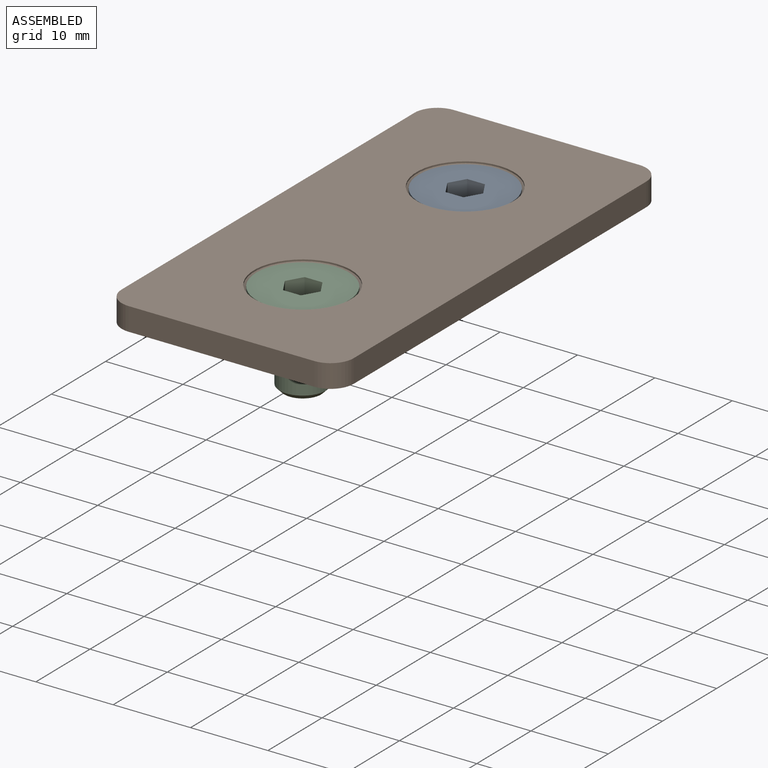
[diagram: assembled view]
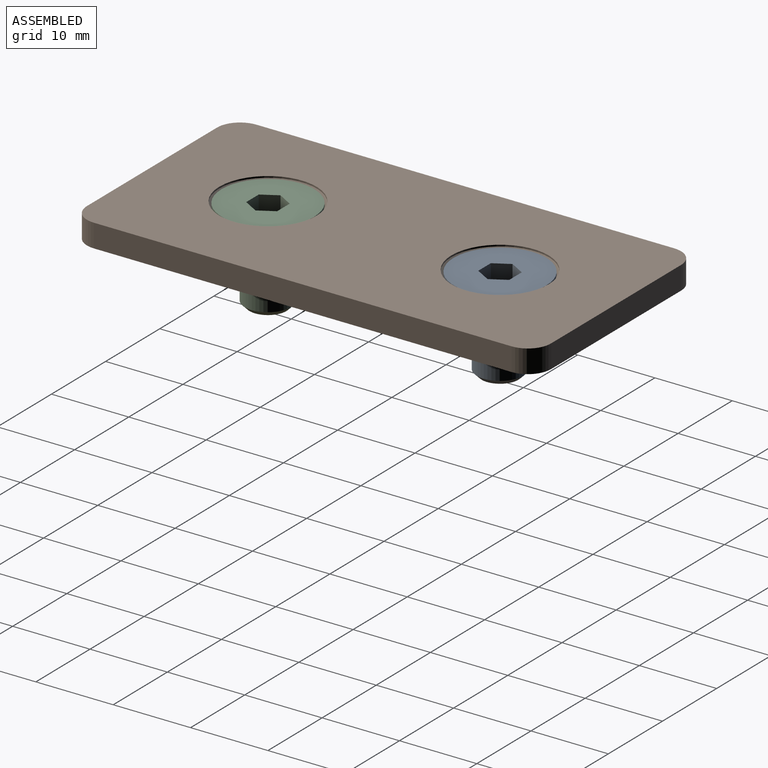
[diagram: assembled view, second angle]
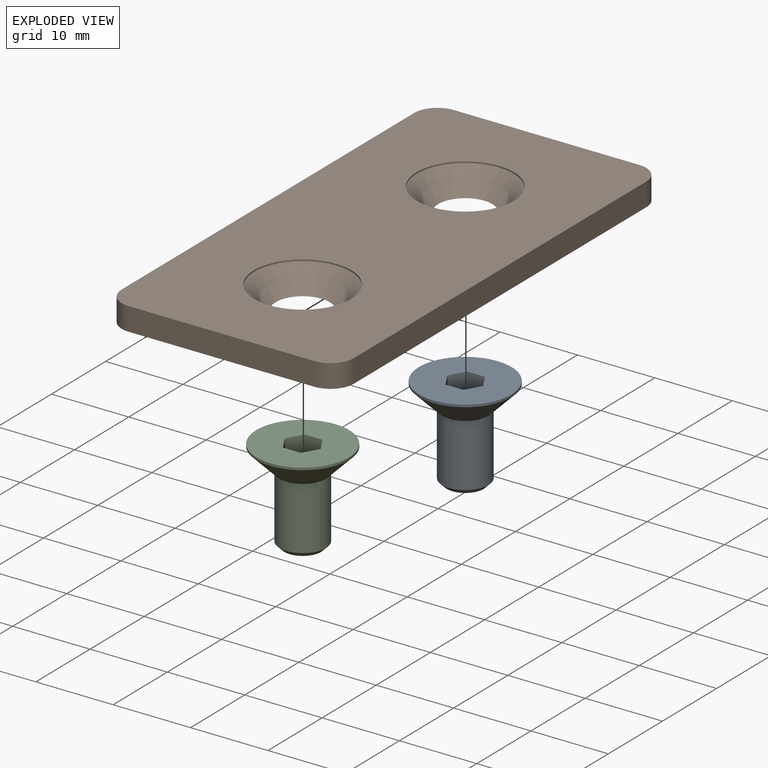
[diagram: exploded view]
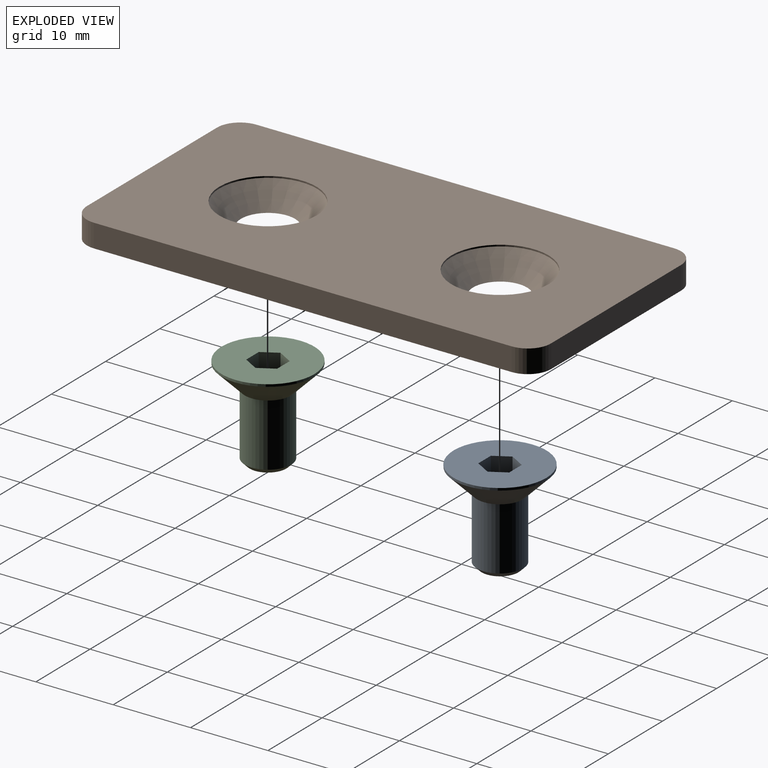
[diagram: exploded view, second angle]
ASSEMBLY  parts=3 mates=2
PART A: 13 faces, bbox 12x12x12 mm
  f0: cylinder r=6mm len=12mm, axis (0,0,-1), area 11.3mm2, adj f1,f9
  f1: cone r=3mm half-angle=45deg, axis (0,0,1), area 120mm2, adj f0,f2
  f2: cylinder r=3mm len=8.09mm, axis (0,0,-1), area 152.4mm2, adj f1,f3
  f3: cone r=1.5mm half-angle=45deg, axis (0,0,1), area 14.7mm2, adj f2,f12
  f4: plane 3.83x2mm, normal (0.87,0.5,0), area 8.9mm2, adj f6,f8,f9,f11
  f5: plane 3.83x2mm, normal (-0.87,-0.5,0), area 8.9mm2, adj f6,f7,f9,f10
  f6: plane 4.62x4mm, normal (0,0,1), area 13.9mm2, adj f4,f5,f7,f8,f10,f11
  f7: plane 3.83x2mm, normal (-0.87,0.5,0), area 8.9mm2, adj f5,f6,f9,f11
  f8: plane 3.83x2mm, normal (0.87,-0.5,0), area 8.9mm2, adj f4,f6,f9,f10
  f9: plane 12x12mm, normal (0,0,1), area 99.2mm2, adj f0,f4,f5,f7,f8,f10,f11
  f10: plane 3.83x2.31mm, normal (0,-1,0), area 8.9mm2, adj f5,f6,f8,f9
  f11: plane 3.83x2.31mm, normal (0,1,0), area 8.9mm2, adj f4,f6,f7,f9
  f12: plane 4.77x4.77mm, normal (0,0,-1), area 17.9mm2, adj f3
PART B: 14 faces, bbox 30x60x3 mm
  f0: cone r=4.9mm half-angle=45deg, axis (0,0,1), area 121.9mm2, adj f2,f6
  f1: cone r=4.9mm half-angle=45deg, axis (0,0,1), area 121.9mm2, adj f3,f6
  f2: cylinder r=6.3mm len=12.6mm, axis (0,0,1), area 7.9mm2, adj f0,f13
  f3: cylinder r=6.3mm len=12.6mm, axis (0,0,1), area 7.9mm2, adj f1,f13
  f4: cylinder r=3mm len=3mm, axis (0,0,1), area 14.1mm2, adj f5,f6,f10,f13
  f5: plane 54x3mm, normal (-1,0,0), area 162mm2, adj f4,f6,f11,f13
  f6: plane 60x30mm, normal (0,0,-1), area 1715.3mm2, adj f0,f1,f4,f5,f7,f8,f9,f10
  f7: cylinder r=3mm len=3mm, axis (0,0,1), area 14.1mm2, adj f6,f8,f12,f13
  f8: plane 54x3mm, normal (1,0,0), area 162mm2, adj f6,f7,f9,f13
  f9: cylinder r=3mm len=3mm, axis (0,0,1), area 14.1mm2, adj f6,f8,f10,f13
  f10: plane 24x3mm, normal (0,1,0), area 72mm2, adj f4,f6,f9,f13
  f11: cylinder r=3mm len=3mm, axis (0,0,1), area 14.1mm2, adj f5,f6,f12,f13
  f12: plane 24x3mm, normal (0,-1,0), area 72mm2, adj f6,f7,f11,f13
  f13: plane 60x30mm, normal (0,0,1), area 1542.9mm2, adj f2,f3,f4,f5,f7,f8,f9,f10
PART C: same geometry as A
PLACE A t=(0,15,2.8)mm
PLACE B at identity
PLACE C t=(0,-15,2.8)mm
MATE fastened C.f0 <-> B.f0  axis (0,0,1) through (0,-15,2.8)mm
MATE fastened A.f0 <-> B.f1  axis (0,0,1) through (0,15,2.8)mm
